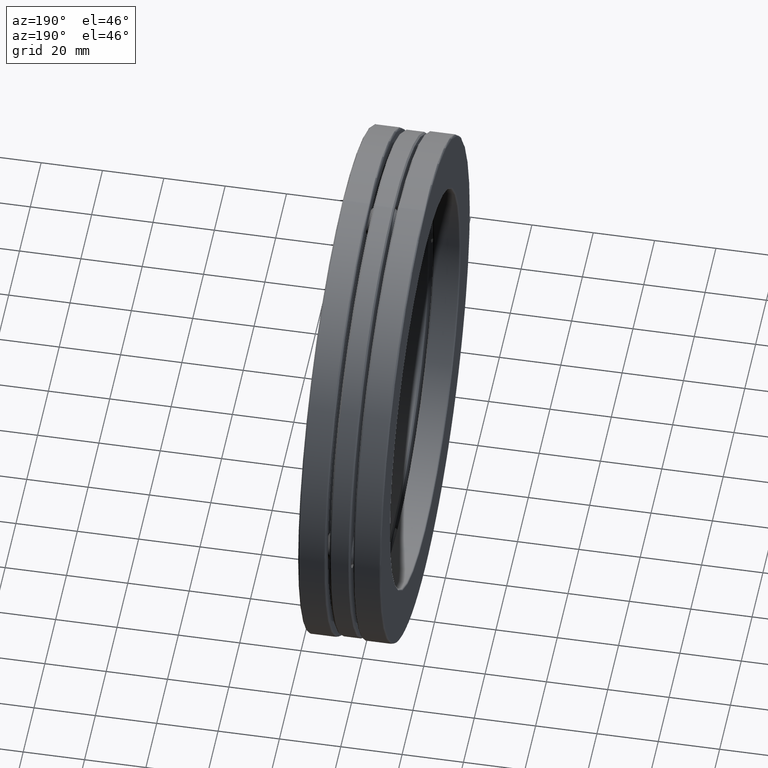
[diagram: clean part render]
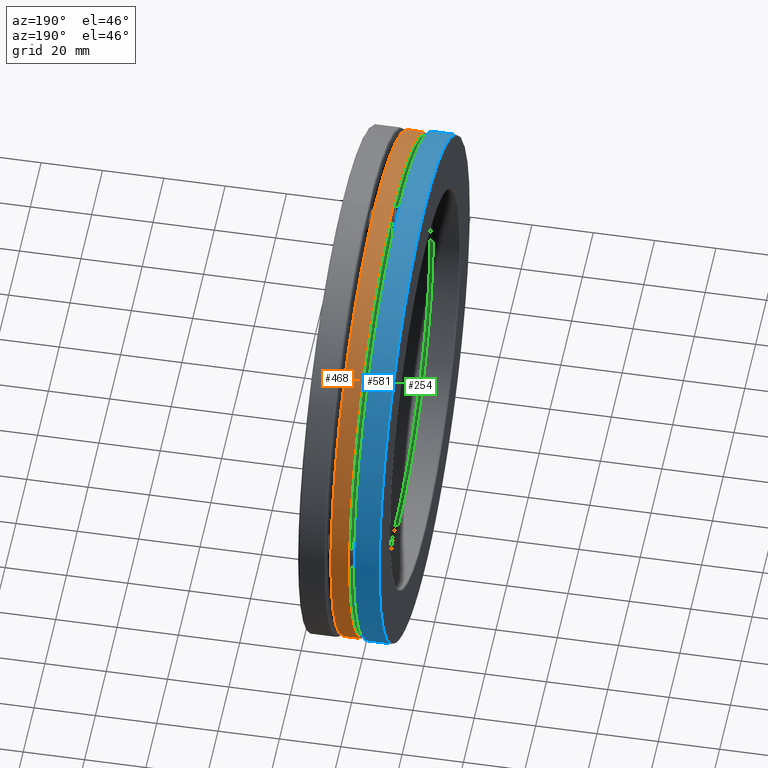
[diagram: same view with three faces highlighted in distinct colors, each labeled with its STEP entity id]
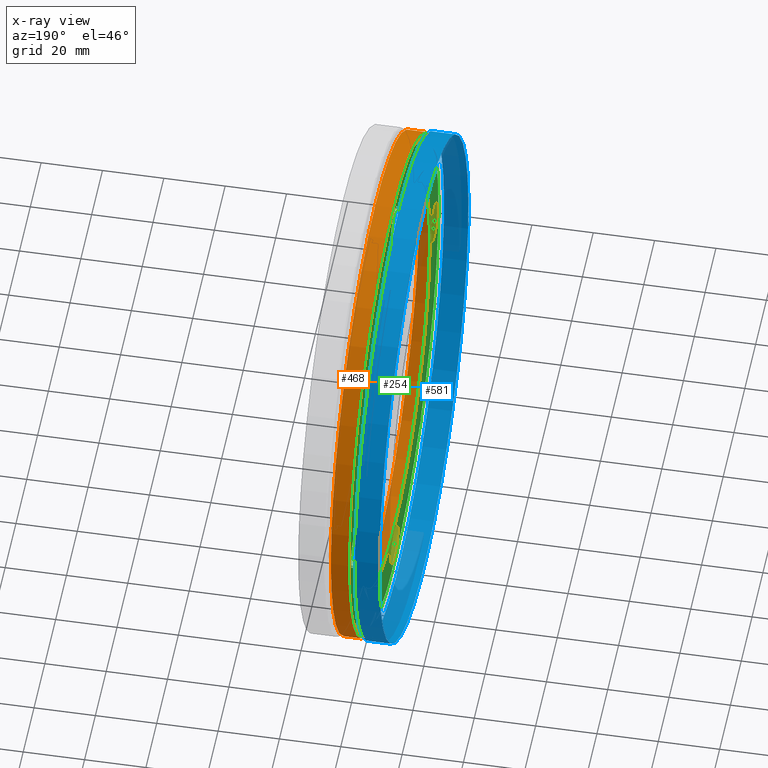
[diagram: x-ray of the same camera — body ghosted, the three highlighted faces saturated]
A machine part, auxiliary view with three faces highlighted in distinct colors.
The next image is the same camera in x-ray (body ghosted, the three faces saturated) — at least one of them is partly hidden behind the body in this view.
Their STEP definitions:

[orange] entity #468 — the highlighted cylindrical surface (bore or boss wall) has radius 81.9912 mm, axis along (-1, -0, -0).
#14 = DIRECTION ( 'NONE',  ( 0.0000000000000000000, 0.0000000000000000000, 1.000000000000000000 ) ) ;
#37 = CIRCLE ( 'NONE', #561, 3.228000000000000600 ) ;
#58 = CARTESIAN_POINT ( 'NONE',  ( 0.0000000000000000000, 0.0000000000000000000, 0.0000000000000000000 ) ) ;
#91 = CARTESIAN_POINT ( 'NONE',  ( -0.1128750000000000200, 0.0000000000000000000, 0.0000000000000000000 ) ) ;
#122 = AXIS2_PLACEMENT_3D ( 'NONE', #91, #463, #14 ) ;
#152 = EDGE_LOOP ( 'NONE', ( #248 ) ) ;
#183 = CARTESIAN_POINT ( 'NONE',  ( 0.1128749999999999900, 0.0000000000000000000, 0.0000000000000000000 ) ) ;
#200 = DIRECTION ( 'NONE',  ( -1.000000000000000000, -0.0000000000000000000, -0.0000000000000000000 ) ) ;
#238 = CARTESIAN_POINT ( 'NONE',  ( -0.1128750000000000200, 0.0000000000000000000, 3.228000000000000600 ) ) ;
#248 = ORIENTED_EDGE ( 'NONE', *, *, #409, .T. ) ;
#321 = ORIENTED_EDGE ( 'NONE', *, *, #592, .F. ) ;
#324 = VERTEX_POINT ( 'NONE', #793 ) ;
#365 = CYLINDRICAL_SURFACE ( 'NONE', #461, 3.228000000000000600 ) ;
#379 = EDGE_LOOP ( 'NONE', ( #321 ) ) ;
#394 = DIRECTION ( 'NONE',  ( 0.0000000000000000000, 0.0000000000000000000, 1.000000000000000000 ) ) ;
#409 = EDGE_CURVE ( 'NONE', #324, #324, #37, .T. ) ;
#439 = DIRECTION ( 'NONE',  ( -1.000000000000000000, -0.0000000000000000000, -0.0000000000000000000 ) ) ;
#449 = CIRCLE ( 'NONE', #122, 3.228000000000000600 ) ;
#461 = AXIS2_PLACEMENT_3D ( 'NONE', #58, #200, #394 ) ;
#463 = DIRECTION ( 'NONE',  ( -1.000000000000000000, -0.0000000000000000000, -0.0000000000000000000 ) ) ;
#468 = ADVANCED_FACE ( 'NONE', ( #764, #544 ), #365, .T. ) ;
#544 = FACE_OUTER_BOUND ( 'NONE', #379, .T. ) ;
#561 = AXIS2_PLACEMENT_3D ( 'NONE', #183, #439, #621 ) ;
#592 = EDGE_CURVE ( 'NONE', #601, #601, #449, .T. ) ;
#601 = VERTEX_POINT ( 'NONE', #238 ) ;
#621 = DIRECTION ( 'NONE',  ( 0.0000000000000000000, 0.0000000000000000000, 1.000000000000000000 ) ) ;
#764 = FACE_OUTER_BOUND ( 'NONE', #152, .T. ) ;
#793 = CARTESIAN_POINT ( 'NONE',  ( 0.1128749999999999900, 0.0000000000000000000, 3.228000000000000600 ) ) ;

[blue] entity #581 — the highlighted cylindrical surface (bore or boss wall) has radius 82.4992 mm, axis along (-1, -0, -0).
#32 = EDGE_CURVE ( 'NONE', #693, #693, #648, .T. ) ;
#59 = FACE_OUTER_BOUND ( 'NONE', #400, .T. ) ;
#71 = DIRECTION ( 'NONE',  ( -1.000000000000000000, -0.0000000000000000000, -0.0000000000000000000 ) ) ;
#90 = FACE_OUTER_BOUND ( 'NONE', #487, .T. ) ;
#97 = CARTESIAN_POINT ( 'NONE',  ( -0.1971702099999996800, 0.0000000000000000000, 0.0000000000000000000 ) ) ;
#168 = CARTESIAN_POINT ( 'NONE',  ( -0.1971702099999996800, 0.0000000000000000000, 3.248000000000000200 ) ) ;
#193 = CIRCLE ( 'NONE', #573, 3.248000000000000200 ) ;
#262 = CARTESIAN_POINT ( 'NONE',  ( -0.5114999999999999500, 0.0000000000000000000, 0.0000000000000000000 ) ) ;
#265 = EDGE_CURVE ( 'NONE', #761, #761, #193, .T. ) ;
#278 = ORIENTED_EDGE ( 'NONE', *, *, #265, .T. ) ;
#348 = CARTESIAN_POINT ( 'NONE',  ( -0.5114999999999999500, 0.0000000000000000000, 3.248000000000001100 ) ) ;
#400 = EDGE_LOOP ( 'NONE', ( #530 ) ) ;
#487 = EDGE_LOOP ( 'NONE', ( #278 ) ) ;
#527 = DIRECTION ( 'NONE',  ( 0.0000000000000000000, 0.0000000000000000000, 1.000000000000000000 ) ) ;
#530 = ORIENTED_EDGE ( 'NONE', *, *, #32, .F. ) ;
#538 = DIRECTION ( 'NONE',  ( -1.000000000000000000, -0.0000000000000000000, -0.0000000000000000000 ) ) ;
#573 = AXIS2_PLACEMENT_3D ( 'NONE', #97, #538, #796 ) ;
#581 = ADVANCED_FACE ( 'NONE', ( #59, #90 ), #734, .T. ) ;
#632 = AXIS2_PLACEMENT_3D ( 'NONE', #262, #769, #527 ) ;
#641 = CARTESIAN_POINT ( 'NONE',  ( 0.0000000000000000000, 0.0000000000000000000, 0.0000000000000000000 ) ) ;
#648 = CIRCLE ( 'NONE', #632, 3.248000000000001100 ) ;
#693 = VERTEX_POINT ( 'NONE', #348 ) ;
#696 = DIRECTION ( 'NONE',  ( 0.0000000000000000000, 0.0000000000000000000, 1.000000000000000000 ) ) ;
#734 = CYLINDRICAL_SURFACE ( 'NONE', #780, 3.248000000000001100 ) ;
#761 = VERTEX_POINT ( 'NONE', #168 ) ;
#769 = DIRECTION ( 'NONE',  ( -1.000000000000000000, -0.0000000000000000000, -0.0000000000000000000 ) ) ;
#780 = AXIS2_PLACEMENT_3D ( 'NONE', #641, #71, #696 ) ;
#796 = DIRECTION ( 'NONE',  ( 0.0000000000000000000, 0.0000000000000000000, 1.000000000000000000 ) ) ;

[green] entity #254 — the highlighted planar face has unit normal (1, 0, 0).
#3 = ORIENTED_EDGE ( 'NONE', *, *, #446, .F. ) ;
#6 = VERTEX_POINT ( 'NONE', #663 ) ;
#39 = DIRECTION ( 'NONE',  ( -1.000000000000000000, -0.0000000000000000000, -0.0000000000000000000 ) ) ;
#64 = CIRCLE ( 'NONE', #616, 0.2550000000000001700 ) ;
#74 = FACE_BOUND ( 'NONE', #368, .T. ) ;
#101 = EDGE_CURVE ( 'NONE', #282, #282, #234, .T. ) ;
#110 = EDGE_CURVE ( 'NONE', #582, #582, #64, .T. ) ;
#118 = FACE_OUTER_BOUND ( 'NONE', #392, .T. ) ;
#129 = EDGE_LOOP ( 'NONE', ( #426 ) ) ;
#133 = CIRCLE ( 'NONE', #145, 3.208000000000001100 ) ;
#142 = FACE_BOUND ( 'NONE', #731, .T. ) ;
#145 = AXIS2_PLACEMENT_3D ( 'NONE', #319, #450, #704 ) ;
#147 = EDGE_CURVE ( 'NONE', #502, #502, #598, .T. ) ;
#154 = CARTESIAN_POINT ( 'NONE',  ( -0.1328749999999999400, -1.862655491369751800E-017, 0.0000000000000000000 ) ) ;
#161 = DIRECTION ( 'NONE',  ( 0.0000000000000000000, 1.000000000000000000, -1.071312938691867200E-014 ) ) ;
#169 = VERTEX_POINT ( 'NONE', #361 ) ;
#190 = AXIS2_PLACEMENT_3D ( 'NONE', #391, #202, #522 ) ;
#202 = DIRECTION ( 'NONE',  ( -1.000000000000000000, -0.0000000000000000000, -0.0000000000000000000 ) ) ;
#224 = DIRECTION ( 'NONE',  ( 0.0000000000000000000, 0.0000000000000000000, 1.000000000000000000 ) ) ;
#234 = CIRCLE ( 'NONE', #190, 0.2550000000000001700 ) ;
#254 = ADVANCED_FACE ( 'NONE', ( #74, #659, #818, #142, #523, #118 ), #534, .F. ) ;
#269 = DIRECTION ( 'NONE',  ( -1.000000000000000000, -0.0000000000000000000, -0.0000000000000000000 ) ) ;
#282 = VERTEX_POINT ( 'NONE', #283 ) ;
#283 = CARTESIAN_POINT ( 'NONE',  ( -0.1328749999999999400, -0.2550000000000102700, -2.903499999999999700 ) ) ;
#288 = ORIENTED_EDGE ( 'NONE', *, *, #569, .T. ) ;
#319 = CARTESIAN_POINT ( 'NONE',  ( -0.1328750000000000200, 0.0000000000000000000, 0.0000000000000000000 ) ) ;
#332 = VERTEX_POINT ( 'NONE', #499 ) ;
#350 = EDGE_LOOP ( 'NONE', ( #695 ) ) ;
#361 = CARTESIAN_POINT ( 'NONE',  ( -0.1328749999999999400, 0.2550000000000305900, 2.903499999999997500 ) ) ;
#368 = EDGE_LOOP ( 'NONE', ( #739 ) ) ;
#391 = CARTESIAN_POINT ( 'NONE',  ( -0.1328749999999999400, -1.013751606733104000E-014, -2.903500000000000200 ) ) ;
#392 = EDGE_LOOP ( 'NONE', ( #288 ) ) ;
#399 = DIRECTION ( 'NONE',  ( 0.0000000000000000000, 0.0000000000000000000, 1.000000000000000000 ) ) ;
#408 = CIRCLE ( 'NONE', #740, 0.2550000000000001700 ) ;
#417 = CARTESIAN_POINT ( 'NONE',  ( -0.1328749999999999400, 3.041254820199311300E-014, 2.903500000000000200 ) ) ;
#422 = CIRCLE ( 'NONE', #622, 0.2550000000000001700 ) ;
#424 = AXIS2_PLACEMENT_3D ( 'NONE', #474, #604, #224 ) ;
#426 = ORIENTED_EDGE ( 'NONE', *, *, #747, .F. ) ;
#446 = EDGE_CURVE ( 'NONE', #6, #6, #422, .T. ) ;
#450 = DIRECTION ( 'NONE',  ( -1.000000000000000000, -0.0000000000000000000, -0.0000000000000000000 ) ) ;
#474 = CARTESIAN_POINT ( 'NONE',  ( -0.1328749999999999400, 0.0000000000000000000, 0.0000000000000000000 ) ) ;
#479 = DIRECTION ( 'NONE',  ( 0.0000000000000000000, 0.0000000000000000000, -1.000000000000000000 ) ) ;
#499 = CARTESIAN_POINT ( 'NONE',  ( -0.1328750000000000200, 0.0000000000000000000, 3.208000000000001100 ) ) ;
#502 = VERTEX_POINT ( 'NONE', #795 ) ;
#522 = DIRECTION ( 'NONE',  ( 0.0000000000000000000, -1.000000000000000000, 2.142625877383734300E-015 ) ) ;
#523 = FACE_BOUND ( 'NONE', #350, .T. ) ;
#534 = PLANE ( 'NONE',  #688 ) ;
#568 = EDGE_LOOP ( 'NONE', ( #679 ) ) ;
#569 = EDGE_CURVE ( 'NONE', #332, #332, #133, .T. ) ;
#578 = DIRECTION ( 'NONE',  ( 0.0000000000000000000, 0.0000000000000000000, -1.000000000000000000 ) ) ;
#582 = VERTEX_POINT ( 'NONE', #605 ) ;
#598 = CIRCLE ( 'NONE', #424, 2.598999999999999800 ) ;
#604 = DIRECTION ( 'NONE',  ( -1.000000000000000000, -0.0000000000000000000, -0.0000000000000000000 ) ) ;
#605 = CARTESIAN_POINT ( 'NONE',  ( -0.1328749999999999400, -2.903500000000000200, 0.2550000000000001700 ) ) ;
#616 = AXIS2_PLACEMENT_3D ( 'NONE', #651, #269, #399 ) ;
#622 = AXIS2_PLACEMENT_3D ( 'NONE', #710, #636, #578 ) ;
#636 = DIRECTION ( 'NONE',  ( -1.000000000000000000, -0.0000000000000000000, -0.0000000000000000000 ) ) ;
#651 = CARTESIAN_POINT ( 'NONE',  ( -0.1328749999999999400, -2.903500000000000200, 0.0000000000000000000 ) ) ;
#659 = FACE_BOUND ( 'NONE', #568, .T. ) ;
#661 = DIRECTION ( 'NONE',  ( 1.000000000000000000, 0.0000000000000000000, 0.0000000000000000000 ) ) ;
#663 = CARTESIAN_POINT ( 'NONE',  ( -0.1328749999999999400, 2.903500000000000200, -0.2550000000000001700 ) ) ;
#679 = ORIENTED_EDGE ( 'NONE', *, *, #110, .F. ) ;
#688 = AXIS2_PLACEMENT_3D ( 'NONE', #154, #661, #479 ) ;
#695 = ORIENTED_EDGE ( 'NONE', *, *, #147, .F. ) ;
#704 = DIRECTION ( 'NONE',  ( 0.0000000000000000000, 0.0000000000000000000, 1.000000000000000000 ) ) ;
#710 = CARTESIAN_POINT ( 'NONE',  ( -0.1328749999999999400, 2.903500000000000200, 0.0000000000000000000 ) ) ;
#731 = EDGE_LOOP ( 'NONE', ( #3 ) ) ;
#739 = ORIENTED_EDGE ( 'NONE', *, *, #101, .F. ) ;
#740 = AXIS2_PLACEMENT_3D ( 'NONE', #417, #39, #161 ) ;
#747 = EDGE_CURVE ( 'NONE', #169, #169, #408, .T. ) ;
#795 = CARTESIAN_POINT ( 'NONE',  ( -0.1328749999999999400, 0.0000000000000000000, 2.598999999999999800 ) ) ;
#818 = FACE_BOUND ( 'NONE', #129, .T. ) ;